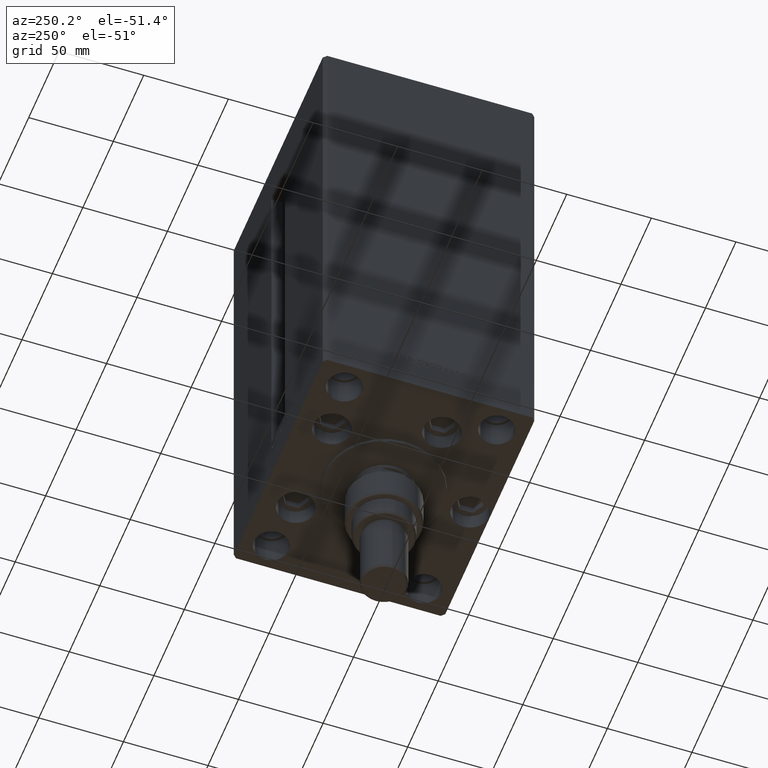
[diagram: clean part render]
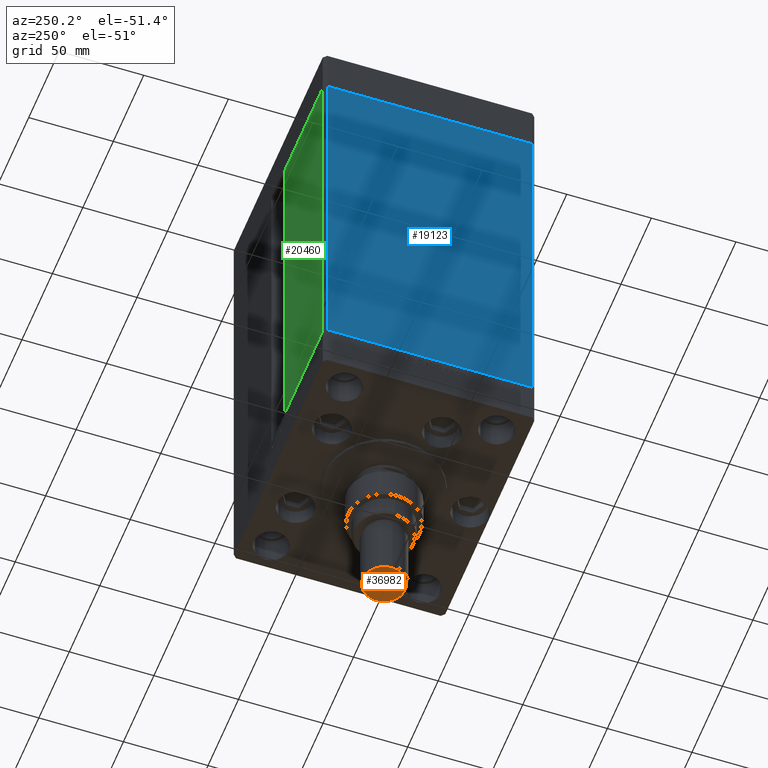
[diagram: same view with three faces highlighted in distinct colors, each labeled with its STEP entity id]
A machine part, auxiliary view with three faces highlighted in distinct colors.
Their STEP definitions:

[orange] entity #36982 — the highlighted planar face has unit normal (0, 0, -1).
#745 = AXIS2_PLACEMENT_3D ( 'NONE', #36146, #49799, #10521 ) ;
#2743 = CIRCLE ( 'NONE', #3530, 12.50000000000000888 ) ;
#3530 = AXIS2_PLACEMENT_3D ( 'NONE', #7461, #19613, #35078 ) ;
#5113 = CARTESIAN_POINT ( 'NONE',  ( 12.50000000000000888, 1.592040838891559884E-15, 74.00000000000001421 ) ) ;
#6640 = AXIS2_PLACEMENT_3D ( 'NONE', #33178, #28878, #47639 ) ;
#7461 = CARTESIAN_POINT ( 'NONE',  ( 0.000000000000000000, 0.000000000000000000, 74.00000000000001421 ) ) ;
#9062 = CIRCLE ( 'NONE', #6640, 12.50000000000000888 ) ;
#10521 = DIRECTION ( 'NONE',  ( 1.000000000000000000, 0.000000000000000000, -0.000000000000000000 ) ) ;
#10626 = VERTEX_POINT ( 'NONE', #16989 ) ;
#13291 = VERTEX_POINT ( 'NONE', #5113 ) ;
#15564 = EDGE_CURVE ( 'NONE', #10626, #13291, #9062, .T. ) ;
#16989 = CARTESIAN_POINT ( 'NONE',  ( -12.50000000000000888, 0.000000000000000000, 74.00000000000001421 ) ) ;
#17358 = ORIENTED_EDGE ( 'NONE', *, *, #15564, .T. ) ;
#18617 = EDGE_CURVE ( 'NONE', #13291, #10626, #2743, .T. ) ;
#19613 = DIRECTION ( 'NONE',  ( 0.000000000000000000, 0.000000000000000000, 1.000000000000000000 ) ) ;
#20902 = ORIENTED_EDGE ( 'NONE', *, *, #18617, .T. ) ;
#23585 = EDGE_LOOP ( 'NONE', ( #17358, #20902 ) ) ;
#28296 = PLANE ( 'NONE',  #745 ) ;
#28878 = DIRECTION ( 'NONE',  ( 0.000000000000000000, 0.000000000000000000, 1.000000000000000000 ) ) ;
#33178 = CARTESIAN_POINT ( 'NONE',  ( 0.000000000000000000, 0.000000000000000000, 74.00000000000001421 ) ) ;
#35078 = DIRECTION ( 'NONE',  ( 1.000000000000000000, 0.000000000000000000, 0.000000000000000000 ) ) ;
#36146 = CARTESIAN_POINT ( 'NONE',  ( 0.000000000000000000, 0.000000000000000000, 74.00000000000001421 ) ) ;
#36982 = ADVANCED_FACE ( 'NONE', ( #39709 ), #28296, .T. ) ;
#39709 = FACE_OUTER_BOUND ( 'NONE', #23585, .T. ) ;
#47639 = DIRECTION ( 'NONE',  ( 1.000000000000000000, 0.000000000000000000, 0.000000000000000000 ) ) ;
#49799 = DIRECTION ( 'NONE',  ( 0.000000000000000000, 0.000000000000000000, 1.000000000000000000 ) ) ;

[blue] entity #19123 — the highlighted planar face has unit normal (1, 0, 0).
#2901 = DIRECTION ( 'NONE',  ( -0.000000000000000000, -0.000000000000000000, -1.000000000000000000 ) ) ;
#3151 = VERTEX_POINT ( 'NONE', #30301 ) ;
#3210 = ORIENTED_EDGE ( 'NONE', *, *, #28577, .F. ) ;
#3709 = VERTEX_POINT ( 'NONE', #41102 ) ;
#3925 = EDGE_CURVE ( 'NONE', #19915, #3709, #31300, .T. ) ;
#4372 = DIRECTION ( 'NONE',  ( 1.000000000000000000, 2.293849224432142354E-16, -0.000000000000000000 ) ) ;
#7570 = AXIS2_PLACEMENT_3D ( 'NONE', #30973, #4372, #42871 ) ;
#8580 = LINE ( 'NONE', #24035, #11127 ) ;
#8815 = ORIENTED_EDGE ( 'NONE', *, *, #33547, .F. ) ;
#9143 = DIRECTION ( 'NONE',  ( 2.293849224432141861E-16, -1.000000000000000000, 0.000000000000000000 ) ) ;
#9368 = VECTOR ( 'NONE', #9143, 1000.000000000000000 ) ;
#10976 = LINE ( 'NONE', #49509, #13474 ) ;
#11127 = VECTOR ( 'NONE', #20238, 1000.000000000000000 ) ;
#12026 = CARTESIAN_POINT ( 'NONE',  ( -75.00000000000001421, 60.50000000000000000, 0.000000000000000000 ) ) ;
#12199 = CARTESIAN_POINT ( 'NONE',  ( -75.00000000000001421, 60.50000000000000000, 217.0000000000000000 ) ) ;
#12225 = EDGE_LOOP ( 'NONE', ( #48153, #8815, #3210, #31310 ) ) ;
#12854 = VECTOR ( 'NONE', #22949, 1000.000000000000000 ) ;
#13279 = VERTEX_POINT ( 'NONE', #12199 ) ;
#13474 = VECTOR ( 'NONE', #2901, 1000.000000000000000 ) ;
#15490 = PLANE ( 'NONE',  #7570 ) ;
#16248 = FACE_OUTER_BOUND ( 'NONE', #12225, .T. ) ;
#19123 = ADVANCED_FACE ( 'NONE', ( #16248 ), #15490, .F. ) ;
#19915 = VERTEX_POINT ( 'NONE', #46434 ) ;
#20238 = DIRECTION ( 'NONE',  ( -0.000000000000000000, -0.000000000000000000, -1.000000000000000000 ) ) ;
#22949 = DIRECTION ( 'NONE',  ( 2.293849224432141861E-16, -1.000000000000000000, 0.000000000000000000 ) ) ;
#24035 = CARTESIAN_POINT ( 'NONE',  ( -74.99999999999998579, -60.50000000000000000, 217.0000000000000000 ) ) ;
#28577 = EDGE_CURVE ( 'NONE', #13279, #3151, #48169, .T. ) ;
#30301 = CARTESIAN_POINT ( 'NONE',  ( -74.99999999999998579, -60.50000000000000000, 217.0000000000000000 ) ) ;
#30405 = EDGE_CURVE ( 'NONE', #13279, #19915, #10976, .T. ) ;
#30973 = CARTESIAN_POINT ( 'NONE',  ( -75.00000000000001421, 60.50000000000000000, 217.0000000000000000 ) ) ;
#31300 = LINE ( 'NONE', #12026, #12854 ) ;
#31310 = ORIENTED_EDGE ( 'NONE', *, *, #30405, .T. ) ;
#33547 = EDGE_CURVE ( 'NONE', #3151, #3709, #8580, .T. ) ;
#39571 = CARTESIAN_POINT ( 'NONE',  ( -75.00000000000001421, 60.50000000000000000, 217.0000000000000000 ) ) ;
#41102 = CARTESIAN_POINT ( 'NONE',  ( -74.99999999999998579, -60.50000000000000000, 0.000000000000000000 ) ) ;
#42871 = DIRECTION ( 'NONE',  ( -2.293849224432142354E-16, 1.000000000000000000, 0.000000000000000000 ) ) ;
#46434 = CARTESIAN_POINT ( 'NONE',  ( -75.00000000000001421, 60.50000000000000000, 0.000000000000000000 ) ) ;
#48153 = ORIENTED_EDGE ( 'NONE', *, *, #3925, .T. ) ;
#48169 = LINE ( 'NONE', #39571, #9368 ) ;
#49509 = CARTESIAN_POINT ( 'NONE',  ( -75.00000000000001421, 60.50000000000000000, 217.0000000000000000 ) ) ;

[green] entity #20460 — the highlighted planar face has unit normal (-0, -1, 0).
#466 = ORIENTED_EDGE ( 'NONE', *, *, #3681, .T. ) ;
#1076 = DIRECTION ( 'NONE',  ( 1.000000000000000000, 0.000000000000000000, 0.000000000000000000 ) ) ;
#1967 = EDGE_LOOP ( 'NONE', ( #23328, #16013, #466, #32271 ) ) ;
#3441 = DIRECTION ( 'NONE',  ( -0.000000000000000000, -0.000000000000000000, 1.000000000000000000 ) ) ;
#3681 = EDGE_CURVE ( 'NONE', #11277, #23014, #6123, .T. ) ;
#6123 = LINE ( 'NONE', #21566, #10394 ) ;
#7532 = CARTESIAN_POINT ( 'NONE',  ( -11.25000000000000178, 62.49999999999999289, 217.0000000000000000 ) ) ;
#7984 = CARTESIAN_POINT ( 'NONE',  ( -11.25000000000000178, 62.49999999999999289, 0.000000000000000000 ) ) ;
#10284 = PLANE ( 'NONE',  #30148 ) ;
#10394 = VECTOR ( 'NONE', #32733, 1000.000000000000000 ) ;
#11277 = VERTEX_POINT ( 'NONE', #17378 ) ;
#11925 = VERTEX_POINT ( 'NONE', #7532 ) ;
#14132 = EDGE_CURVE ( 'NONE', #25626, #11925, #15503, .T. ) ;
#15503 = LINE ( 'NONE', #16002, #33263 ) ;
#16002 = CARTESIAN_POINT ( 'NONE',  ( -11.25000000000000178, 62.49999999999999289, 217.0000000000000000 ) ) ;
#16013 = ORIENTED_EDGE ( 'NONE', *, *, #20555, .F. ) ;
#17334 = DIRECTION ( 'NONE',  ( -0.000000000000000000, -0.000000000000000000, -1.000000000000000000 ) ) ;
#17378 = CARTESIAN_POINT ( 'NONE',  ( -11.25000000000000178, 62.49999999999999289, 0.000000000000000000 ) ) ;
#20406 = VECTOR ( 'NONE', #17334, 1000.000000000000000 ) ;
#20460 = ADVANCED_FACE ( 'NONE', ( #44756 ), #10284, .F. ) ;
#20555 = EDGE_CURVE ( 'NONE', #11277, #11925, #42694, .T. ) ;
#21566 = CARTESIAN_POINT ( 'NONE',  ( -11.25000000000000178, 62.49999999999999289, 0.000000000000000000 ) ) ;
#22696 = DIRECTION ( 'NONE',  ( 1.000000000000000000, -1.123707514802790025E-16, 0.000000000000000000 ) ) ;
#23014 = VERTEX_POINT ( 'NONE', #34818 ) ;
#23328 = ORIENTED_EDGE ( 'NONE', *, *, #14132, .T. ) ;
#25508 = CARTESIAN_POINT ( 'NONE',  ( -11.25000000000000178, 62.49999999999999289, 217.0000000000000000 ) ) ;
#25626 = VERTEX_POINT ( 'NONE', #46050 ) ;
#25680 = LINE ( 'NONE', #44943, #20406 ) ;
#30148 = AXIS2_PLACEMENT_3D ( 'NONE', #25508, #40981, #22696 ) ;
#32271 = ORIENTED_EDGE ( 'NONE', *, *, #48772, .F. ) ;
#32683 = VECTOR ( 'NONE', #3441, 1000.000000000000000 ) ;
#32733 = DIRECTION ( 'NONE',  ( -1.000000000000000000, 1.123707514802790025E-16, 0.000000000000000000 ) ) ;
#33263 = VECTOR ( 'NONE', #1076, 1000.000000000000000 ) ;
#34818 = CARTESIAN_POINT ( 'NONE',  ( -73.00000000000001421, 62.50000000000000000, 0.000000000000000000 ) ) ;
#40981 = DIRECTION ( 'NONE',  ( -1.123707514802790025E-16, -1.000000000000000000, 0.000000000000000000 ) ) ;
#42694 = LINE ( 'NONE', #7984, #32683 ) ;
#44756 = FACE_OUTER_BOUND ( 'NONE', #1967, .T. ) ;
#44943 = CARTESIAN_POINT ( 'NONE',  ( -73.00000000000001421, 62.50000000000000000, 217.0000000000000000 ) ) ;
#46050 = CARTESIAN_POINT ( 'NONE',  ( -73.00000000000001421, 62.50000000000000000, 217.0000000000000000 ) ) ;
#48772 = EDGE_CURVE ( 'NONE', #25626, #23014, #25680, .T. ) ;